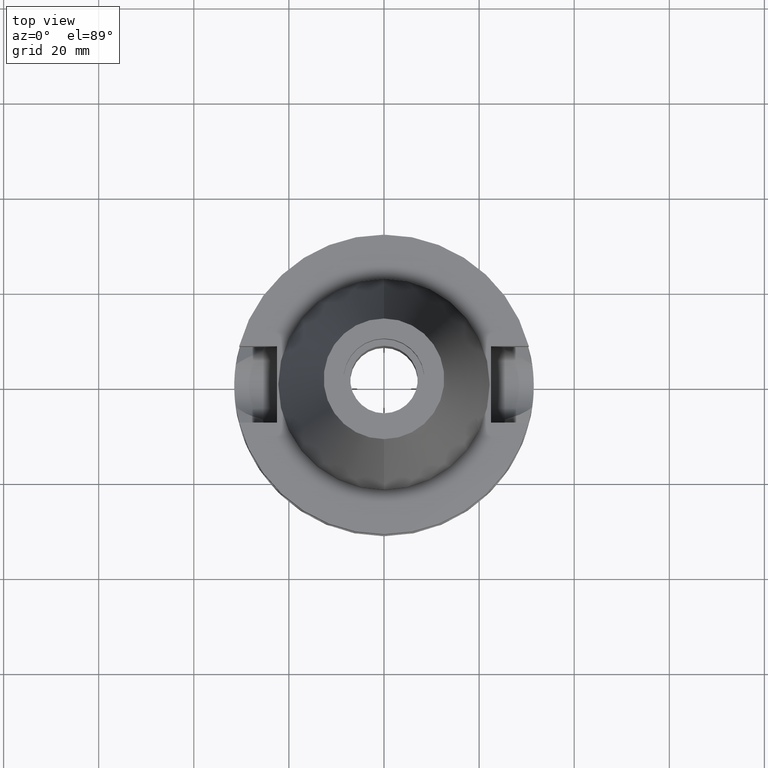
[diagram: clean part render]
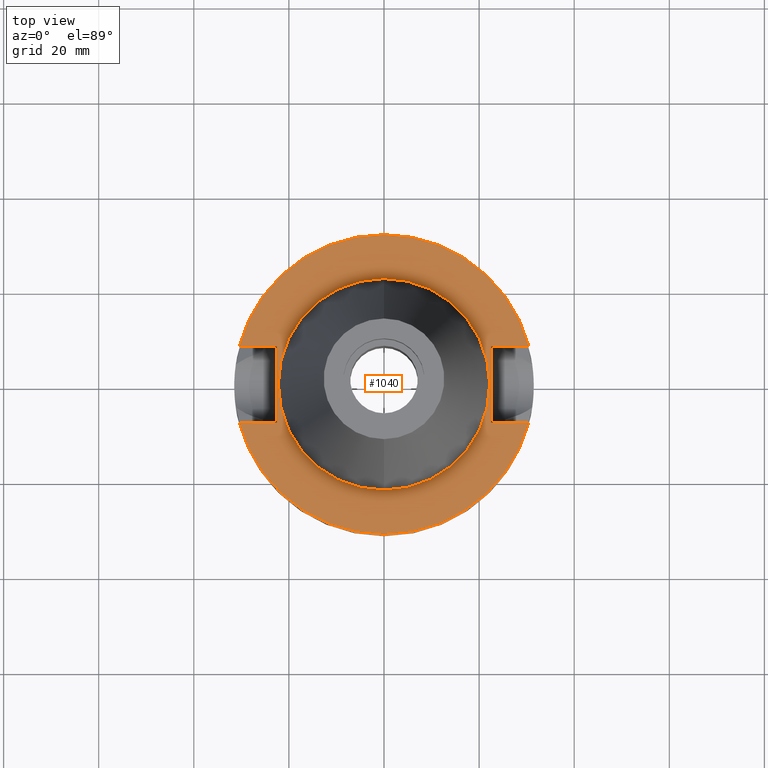
[diagram: same view with one face highlighted and labeled with its STEP entity id]
A machine part, top view. The second image highlights one B-rep face of the part: STEP entity #1040.
In plain terms, the highlighted planar face has unit normal (0, 0, -1).
Its self-contained STEP definition (entity closure, byte-faithful):
#31 = EDGE_CURVE ( 'NONE', #670, #1473, #320, .T. ) ;
#70 = ORIENTED_EDGE ( 'NONE', *, *, #772, .F. ) ;
#87 = CARTESIAN_POINT ( 'NONE',  ( 0.0000000000000000000, 2.097452572899999775E-14, -2.000000000000000000 ) ) ;
#109 = EDGE_CURVE ( 'NONE', #2353, #265, #3355, .T. ) ;
#204 = CARTESIAN_POINT ( 'NONE',  ( 30.45402272279000044, 8.050000000000000711, -2.000000000000000000 ) ) ;
#222 = EDGE_CURVE ( 'NONE', #1101, #3129, #1794, .T. ) ;
#256 = VERTEX_POINT ( 'NONE', #658 ) ;
#265 = VERTEX_POINT ( 'NONE', #204 ) ;
#312 = ORIENTED_EDGE ( 'NONE', *, *, #2406, .F. ) ;
#320 = LINE ( 'NONE', #2781, #2408 ) ;
#354 = ORIENTED_EDGE ( 'NONE', *, *, #1549, .F. ) ;
#355 = CARTESIAN_POINT ( 'NONE',  ( 0.0000000000000000000, -22.22500000000000142, -2.000000000000000000 ) ) ;
#418 = VECTOR ( 'NONE', #2075, 1000.000000000000000 ) ;
#474 = DIRECTION ( 'NONE',  ( 0.0000000000000000000, 0.0000000000000000000, 1.000000000000000000 ) ) ;
#518 = ORIENTED_EDGE ( 'NONE', *, *, #2974, .F. ) ;
#596 = CIRCLE ( 'NONE', #1044, 31.50000000000000000 ) ;
#605 = VECTOR ( 'NONE', #2516, 1000.000000000000000 ) ;
#610 = CARTESIAN_POINT ( 'NONE',  ( -22.50000000000000000, 8.050000000000000711, -2.000000000000000000 ) ) ;
#612 = DIRECTION ( 'NONE',  ( 0.0000000000000000000, -1.000000000000000000, 0.0000000000000000000 ) ) ;
#617 = PLANE ( 'NONE',  #2405 ) ;
#658 = CARTESIAN_POINT ( 'NONE',  ( -30.45402272279000044, 8.050000000000000711, -2.000000000000000000 ) ) ;
#670 = VERTEX_POINT ( 'NONE', #1477 ) ;
#772 = EDGE_CURVE ( 'NONE', #3226, #256, #793, .T. ) ;
#793 = LINE ( 'NONE', #2104, #418 ) ;
#880 = EDGE_CURVE ( 'NONE', #892, #1920, #1872, .T. ) ;
#892 = VERTEX_POINT ( 'NONE', #3555 ) ;
#901 = LINE ( 'NONE', #3347, #605 ) ;
#1003 = ORIENTED_EDGE ( 'NONE', *, *, #1025, .F. ) ;
#1008 = DIRECTION ( 'NONE',  ( 0.0000000000000000000, -1.000000000000000000, 0.0000000000000000000 ) ) ;
#1025 = EDGE_CURVE ( 'NONE', #1920, #1473, #1733, .T. ) ;
#1040 = ADVANCED_FACE ( 'NONE', ( #1247, #2514 ), #617, .F. ) ;
#1044 = AXIS2_PLACEMENT_3D ( 'NONE', #1321, #2413, #1640 ) ;
#1101 = VERTEX_POINT ( 'NONE', #355 ) ;
#1139 = CARTESIAN_POINT ( 'NONE',  ( 22.50000000000000000, -8.050000000000000711, -2.000000000000000000 ) ) ;
#1206 = CARTESIAN_POINT ( 'NONE',  ( 22.50000000000000000, 8.050000000000000711, -2.000000000000000000 ) ) ;
#1230 = ORIENTED_EDGE ( 'NONE', *, *, #31, .T. ) ;
#1243 = DIRECTION ( 'NONE',  ( 0.0000000000000000000, 1.000000000000000000, 0.0000000000000000000 ) ) ;
#1247 = FACE_OUTER_BOUND ( 'NONE', #3005, .T. ) ;
#1295 = AXIS2_PLACEMENT_3D ( 'NONE', #3396, #474, #1243 ) ;
#1321 = CARTESIAN_POINT ( 'NONE',  ( 0.0000000000000000000, 2.097452572899999775E-14, -2.000000000000000000 ) ) ;
#1337 = CARTESIAN_POINT ( 'NONE',  ( 30.45402272279000044, -8.050000000000000711, -2.000000000000000000 ) ) ;
#1386 = AXIS2_PLACEMENT_3D ( 'NONE', #87, #2835, #1502 ) ;
#1425 = DIRECTION ( 'NONE',  ( -1.000000000000000000, 3.550916904668000126E-14, 0.0000000000000000000 ) ) ;
#1473 = VERTEX_POINT ( 'NONE', #3533 ) ;
#1474 = DIRECTION ( 'NONE',  ( 0.0000000000000000000, 0.0000000000000000000, -1.000000000000000000 ) ) ;
#1477 = CARTESIAN_POINT ( 'NONE',  ( -22.50000000000000000, -8.050000000000000711, -2.000000000000000000 ) ) ;
#1502 = DIRECTION ( 'NONE',  ( 0.0000000000000000000, -1.000000000000000000, 0.0000000000000000000 ) ) ;
#1549 = EDGE_CURVE ( 'NONE', #2353, #892, #1753, .T. ) ;
#1556 = ORIENTED_EDGE ( 'NONE', *, *, #1772, .F. ) ;
#1640 = DIRECTION ( 'NONE',  ( 0.0000000000000000000, 1.000000000000000000, 0.0000000000000000000 ) ) ;
#1733 = CIRCLE ( 'NONE', #1386, 31.50000000000000000 ) ;
#1737 = VECTOR ( 'NONE', #612, 1000.000000000000000 ) ;
#1753 = LINE ( 'NONE', #1206, #1737 ) ;
#1772 = EDGE_CURVE ( 'NONE', #256, #265, #596, .T. ) ;
#1794 = CIRCLE ( 'NONE', #2582, 22.22500000000000142 ) ;
#1803 = CARTESIAN_POINT ( 'NONE',  ( 22.50000000000000000, 8.050000000000000711, -2.000000000000000000 ) ) ;
#1872 = LINE ( 'NONE', #1139, #3327 ) ;
#1920 = VERTEX_POINT ( 'NONE', #1337 ) ;
#1989 = DIRECTION ( 'NONE',  ( 0.0000000000000000000, -1.000000000000000000, 0.0000000000000000000 ) ) ;
#1992 = EDGE_LOOP ( 'NONE', ( #518, #2457 ) ) ;
#2075 = DIRECTION ( 'NONE',  ( -1.000000000000000000, -3.550916904668000126E-14, 0.0000000000000000000 ) ) ;
#2104 = CARTESIAN_POINT ( 'NONE',  ( -22.50000000000000000, 8.050000000000000711, -2.000000000000000000 ) ) ;
#2106 = CARTESIAN_POINT ( 'NONE',  ( 0.0000000000000000000, 2.097452572899999775E-14, -2.000000000000000000 ) ) ;
#2168 = DIRECTION ( 'NONE',  ( 1.000000000000000000, 3.573249715389999860E-14, 0.0000000000000000000 ) ) ;
#2353 = VERTEX_POINT ( 'NONE', #2483 ) ;
#2405 = AXIS2_PLACEMENT_3D ( 'NONE', #3114, #1474, #1989 ) ;
#2406 = EDGE_CURVE ( 'NONE', #670, #3226, #901, .T. ) ;
#2408 = VECTOR ( 'NONE', #1425, 1000.000000000000000 ) ;
#2413 = DIRECTION ( 'NONE',  ( 0.0000000000000000000, 0.0000000000000000000, -1.000000000000000000 ) ) ;
#2457 = ORIENTED_EDGE ( 'NONE', *, *, #222, .F. ) ;
#2477 = ORIENTED_EDGE ( 'NONE', *, *, #109, .T. ) ;
#2483 = CARTESIAN_POINT ( 'NONE',  ( 22.50000000000000000, 8.050000000000000711, -2.000000000000000000 ) ) ;
#2514 = FACE_BOUND ( 'NONE', #1992, .T. ) ;
#2516 = DIRECTION ( 'NONE',  ( 0.0000000000000000000, 1.000000000000000000, 0.0000000000000000000 ) ) ;
#2582 = AXIS2_PLACEMENT_3D ( 'NONE', #2106, #3198, #1008 ) ;
#2643 = DIRECTION ( 'NONE',  ( 1.000000000000000000, -3.506251283225999947E-14, 0.0000000000000000000 ) ) ;
#2701 = ORIENTED_EDGE ( 'NONE', *, *, #880, .F. ) ;
#2781 = CARTESIAN_POINT ( 'NONE',  ( -22.50000000000000000, -8.050000000000000711, -2.000000000000000000 ) ) ;
#2835 = DIRECTION ( 'NONE',  ( 0.0000000000000000000, 0.0000000000000000000, -1.000000000000000000 ) ) ;
#2921 = VECTOR ( 'NONE', #2643, 1000.000000000000000 ) ;
#2974 = EDGE_CURVE ( 'NONE', #3129, #1101, #3457, .T. ) ;
#3005 = EDGE_LOOP ( 'NONE', ( #1230, #1003, #2701, #354, #2477, #1556, #70, #312 ) ) ;
#3114 = CARTESIAN_POINT ( 'NONE',  ( 0.0000000000000000000, 1.200153863163999924E-14, -2.000000000000000000 ) ) ;
#3129 = VERTEX_POINT ( 'NONE', #3227 ) ;
#3198 = DIRECTION ( 'NONE',  ( 0.0000000000000000000, 0.0000000000000000000, 1.000000000000000000 ) ) ;
#3226 = VERTEX_POINT ( 'NONE', #610 ) ;
#3227 = CARTESIAN_POINT ( 'NONE',  ( 0.0000000000000000000, 22.22500000000000142, -2.000000000000000000 ) ) ;
#3327 = VECTOR ( 'NONE', #2168, 1000.000000000000000 ) ;
#3347 = CARTESIAN_POINT ( 'NONE',  ( -22.50000000000000000, -8.050000000000000711, -2.000000000000000000 ) ) ;
#3355 = LINE ( 'NONE', #1803, #2921 ) ;
#3396 = CARTESIAN_POINT ( 'NONE',  ( 0.0000000000000000000, 2.097452572899999775E-14, -2.000000000000000000 ) ) ;
#3457 = CIRCLE ( 'NONE', #1295, 22.22500000000000142 ) ;
#3533 = CARTESIAN_POINT ( 'NONE',  ( -30.45402272279000044, -8.050000000000000711, -2.000000000000000000 ) ) ;
#3555 = CARTESIAN_POINT ( 'NONE',  ( 22.50000000000000000, -8.050000000000000711, -2.000000000000000000 ) ) ;